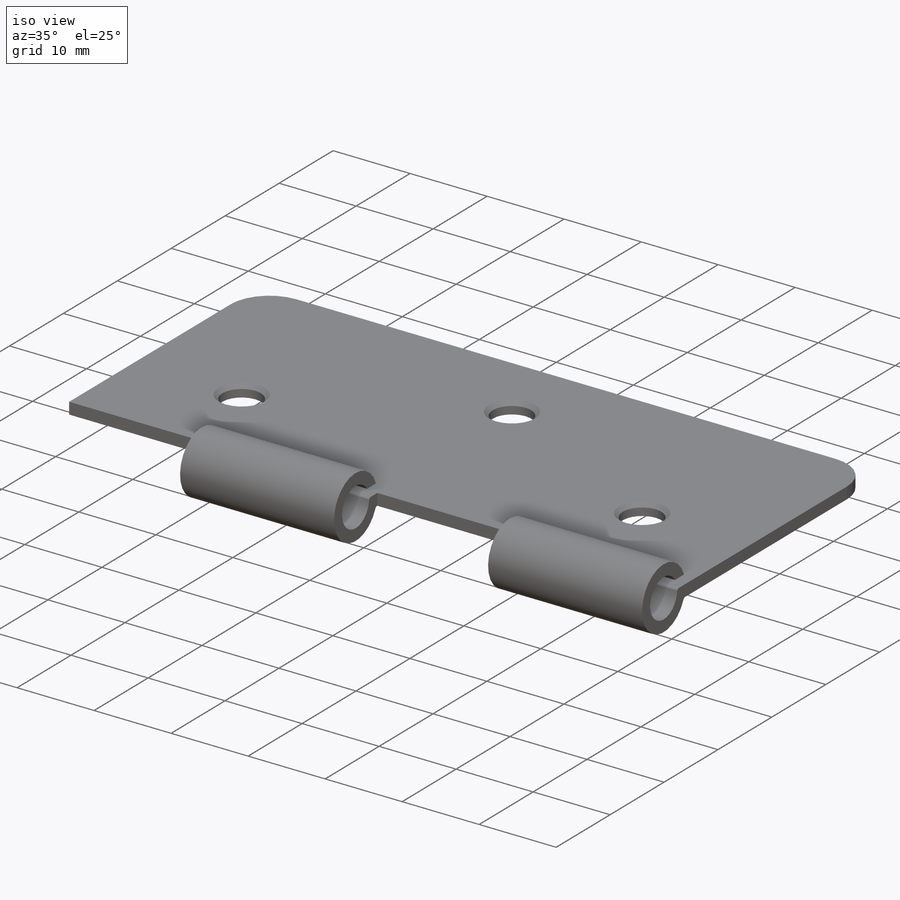
[diagram: iso view]
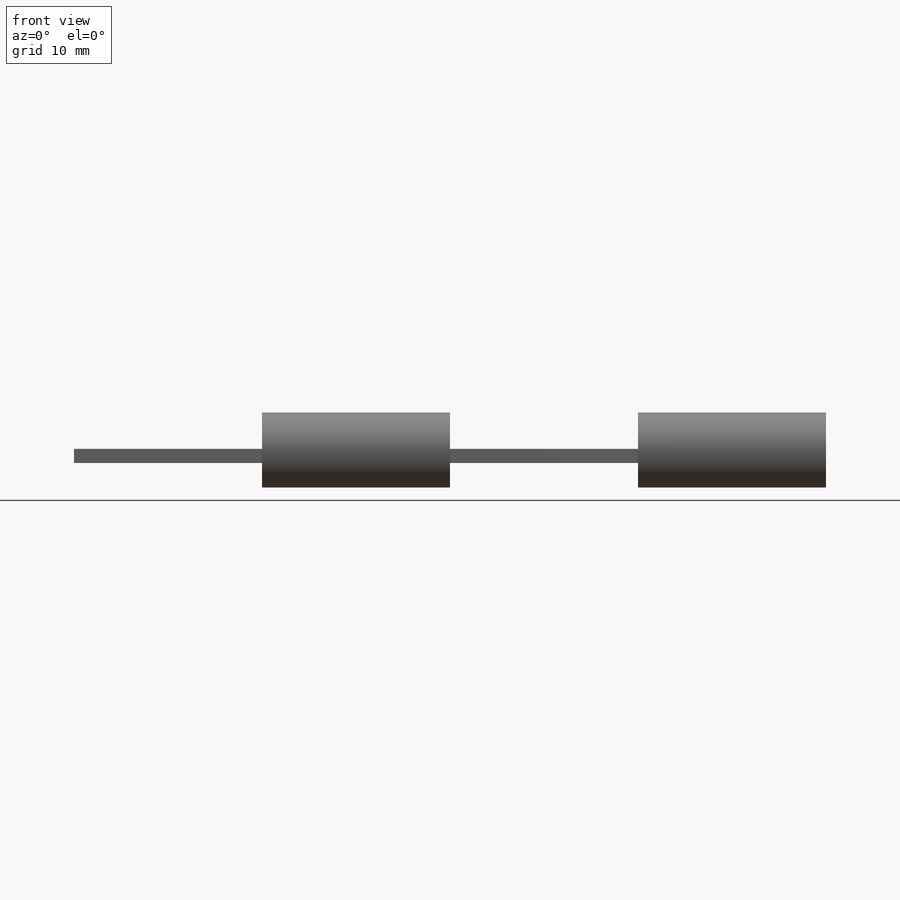
[diagram: front view]
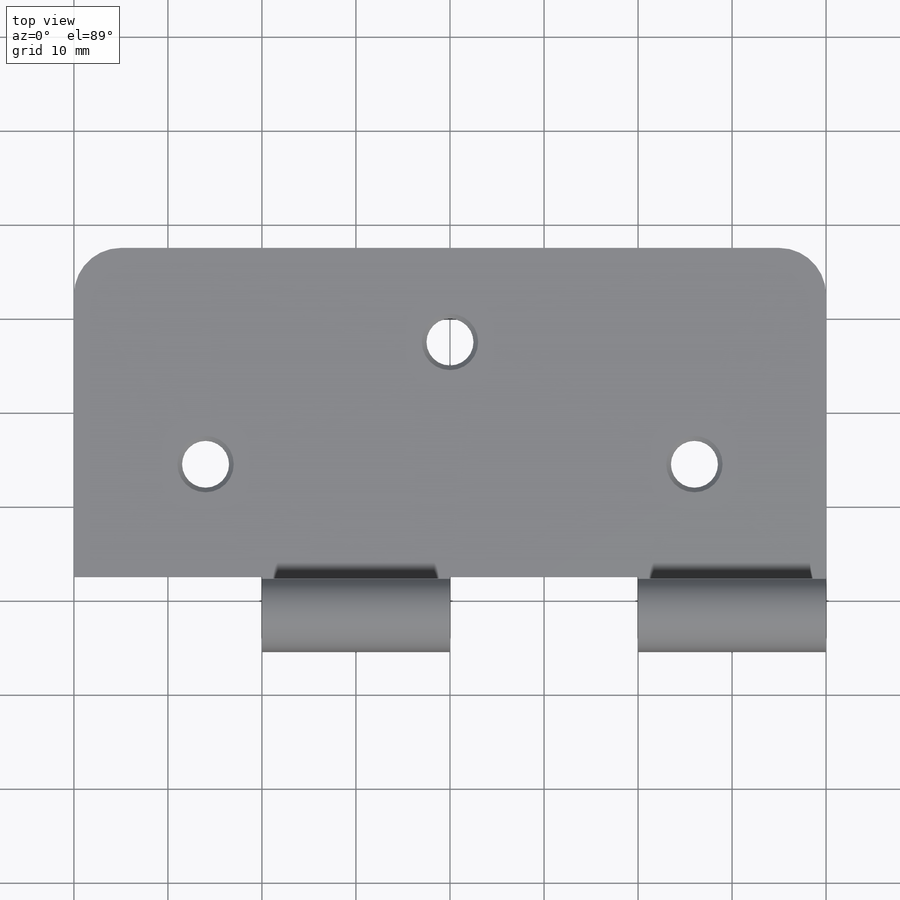
[diagram: top view]
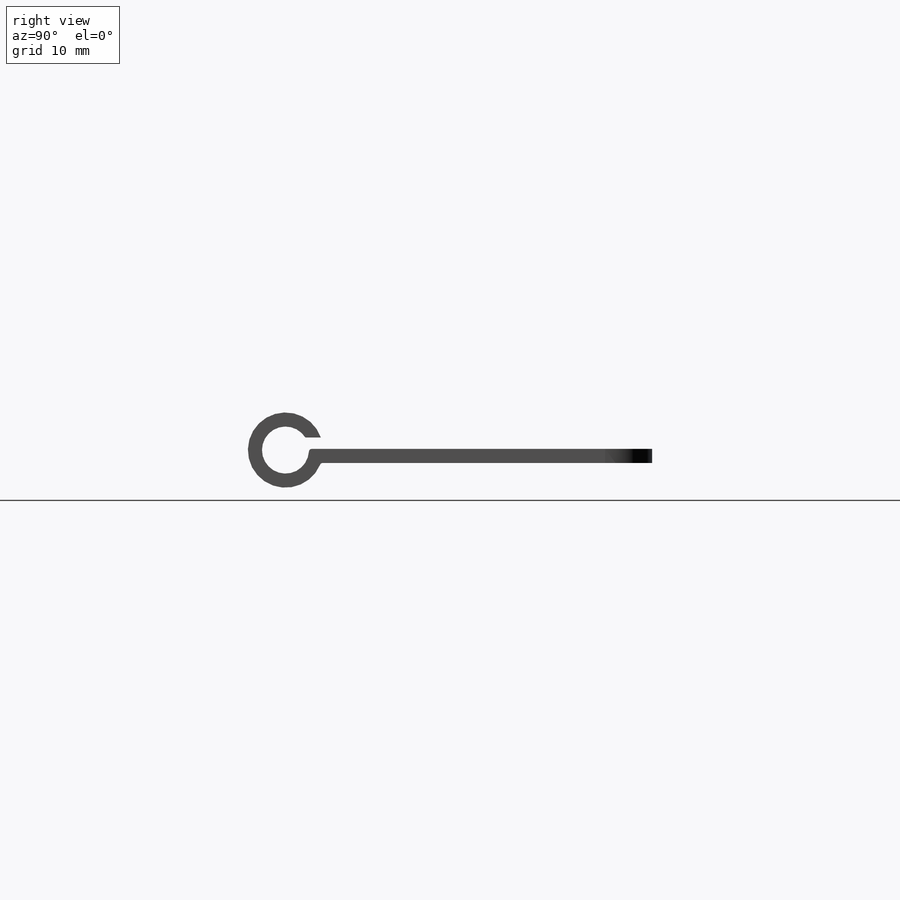
[diagram: right view]
SOLIDWORKS PART (.sldprt)
format: sldprt  version: not decoded by parser v0  size: 203,264 bytes
history: native  units: mm
features: sketch x3, extrude x2, material x1, pattern_linear x1, cut_extrude x1, chamfer x1 (+12 scaffold rows collapsed)
feature tree (21):
  scaffold x12  (default folders/planes/origin — collapsed)
  material  "Material <not specified>"
  sketch  "Sketch1"  dims[D3=5.0mm D1=80.0mm D2=35.0mm]
  extrude  "Boss-Extrude1"  Depth=1.5mm
  sketch  "Sketch3"  dims[D1=8.0mm D2=5.0mm D3=0.3mm]
  extrude  "Boss-Extrude2"  Depth=20mm
  pattern_linear  "LPattern1"  Count1=2 Count2=1 Spacing1=40mm Spacing2=50mm
  sketch  "Sketch4"  dims[c1.D1=5.0mm c1.D2=5.0mm c1.D3=5.0mm c1.D4=12.0mm c1.D5=~16.087171mm c2.D4=12.0mm c2.D5=14.0mm c2.D6=14.0mm c2.D7=12.0mm c2.D8=10.0mm]
  cut_extrude  "Cut-Extrude1"  [1 undecoded]
  chamfer  "Chamfer1"  Distance=0.5mm Angle=45deg
decode coverage: 7 of 8 modeling features carry decoded parameters
note: ~ marks probable driven/reference dimensions
note: 1 parameter value undecoded
note: suppression state not decoded; provenance and decode notes live in map.json
